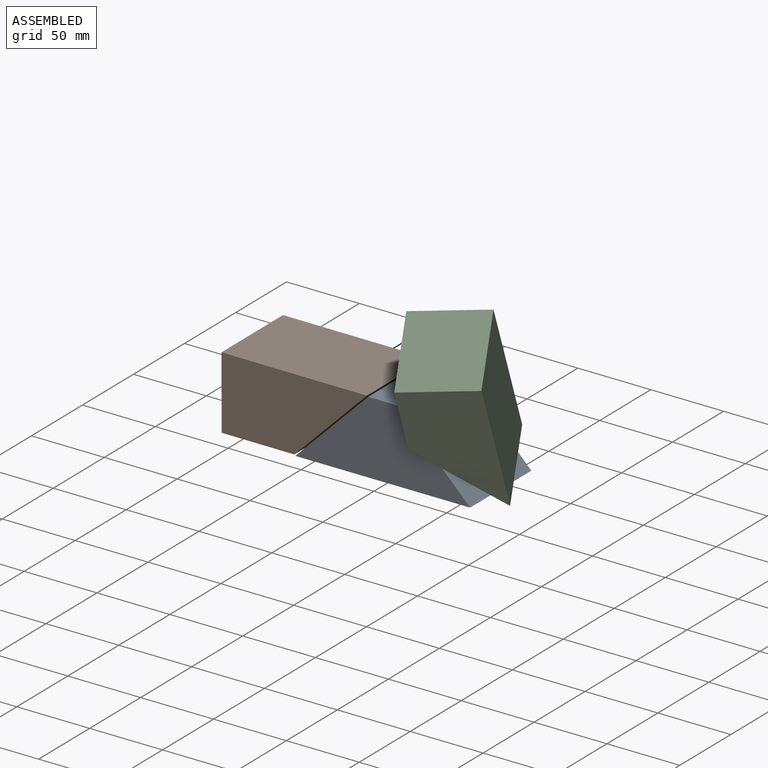
[diagram: assembled view]
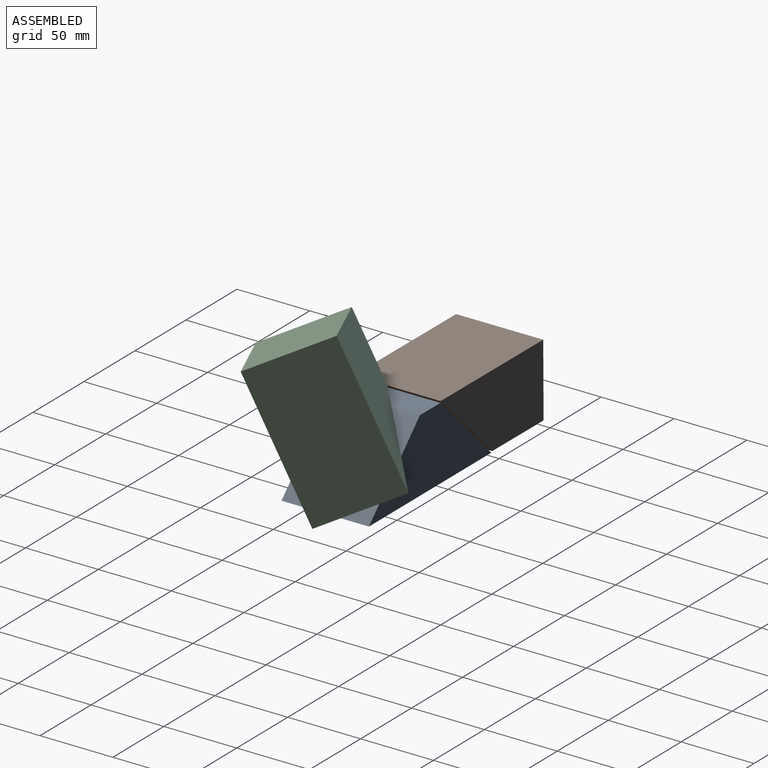
[diagram: assembled view, second angle]
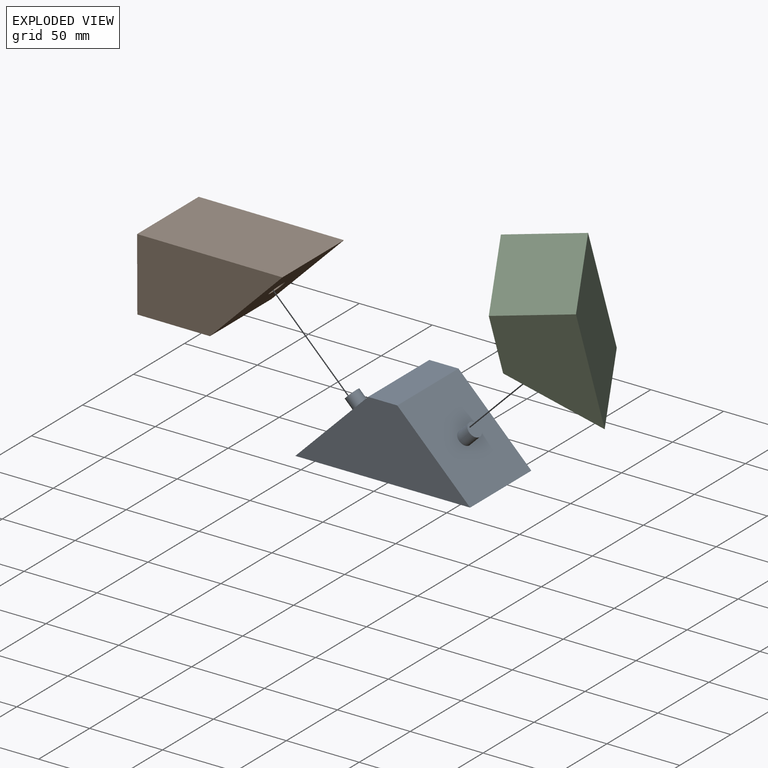
[diagram: exploded view]
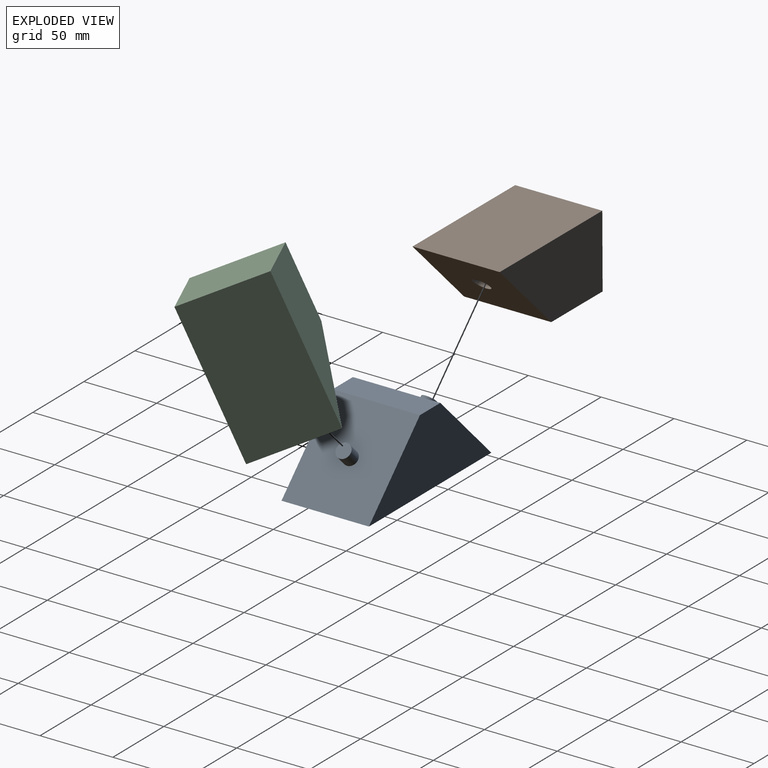
[diagram: exploded view, second angle]
ASSEMBLY  parts=3 mates=3
PART A: 10 faces, bbox 120x60x50 mm
  f0: plane 60x50mm, normal (-0.71,0,0.71), area 4164.1mm2, adj f1,f3,f4,f5,f8
  f1: plane 120x60mm, normal (0,0,-1), area 7200mm2, adj f0,f2,f4,f5
  f2: plane 60x50mm, normal (0.71,0,0.71), area 4164.1mm2, adj f1,f3,f4,f5,f6
  f3: plane 60x20mm, normal (0,0,1), area 1200mm2, adj f0,f2,f4,f5
  f4: plane 120x50mm, normal (0,-1,0), area 3500mm2, adj f0,f1,f2,f3
  f5: plane 120x50mm, normal (0,1,0), area 3500mm2, adj f0,f1,f2,f3
  f6: cylinder r=5mm len=14.14mm, axis (-0.71,0,-0.71), area 314.2mm2, adj f2,f7
  f7: plane 10x7.07mm, normal (0.71,0,0.71), area 78.5mm2, adj f6
  f8: cylinder r=5mm len=14.14mm, axis (0.71,0,-0.71), area 314.2mm2, adj f0,f9
  f9: plane 10x7.07mm, normal (-0.71,0,0.71), area 78.5mm2, adj f8
PART B: 8 faces, bbox 100x60x50 mm
  f0: plane 100x60mm, normal (0,0,1), area 6000mm2, adj f1,f3,f4,f5
  f1: plane 60x50mm, normal (-0.71,0,-0.71), area 4135mm2, adj f0,f2,f4,f5,f6
  f2: plane 60x50mm, normal (0,0,-1), area 3000mm2, adj f1,f3,f4,f5
  f3: plane 60x50mm, normal (1,0,0), area 3000mm2, adj f0,f2,f4,f5
  f4: plane 100x50mm, normal (0,-1,0), area 3750mm2, adj f0,f1,f2,f3
  f5: plane 100x50mm, normal (0,1,0), area 3750mm2, adj f0,f1,f2,f3
  f6: cylinder r=5.85mm len=13.94mm, axis (-0.71,0,-0.71), area 294.2mm2, adj f1,f7
  f7: plane 11.71x8.28mm, normal (-0.71,0,-0.71), area 107.6mm2, adj f6
PART C: same geometry as B
PLACE A t=(-7.9,-42.81,-1.28)mm fixed
PLACE B rot(axis=(0,0,1),179.8deg) t=(-68.61,-42.6,-25.57)mm
PLACE C rot(axis=(-0.71,0,-0.71),143.3deg) t=(7.77,-63.95,19.47)mm
MATE revolute A.f6 <-> C.f6  axis (-0.71,0,-0.71) through (30.63,-42.81,2.26)mm
MATE parallel B.f6 <-> A.f8  axis (0.71,0,-0.71) through (-43.61,-42.81,-0.57)mm
MATE revolute A.f8 <-> B.f6  axis (0.71,0,-0.71) through (-46.44,-42.81,2.26)mm
